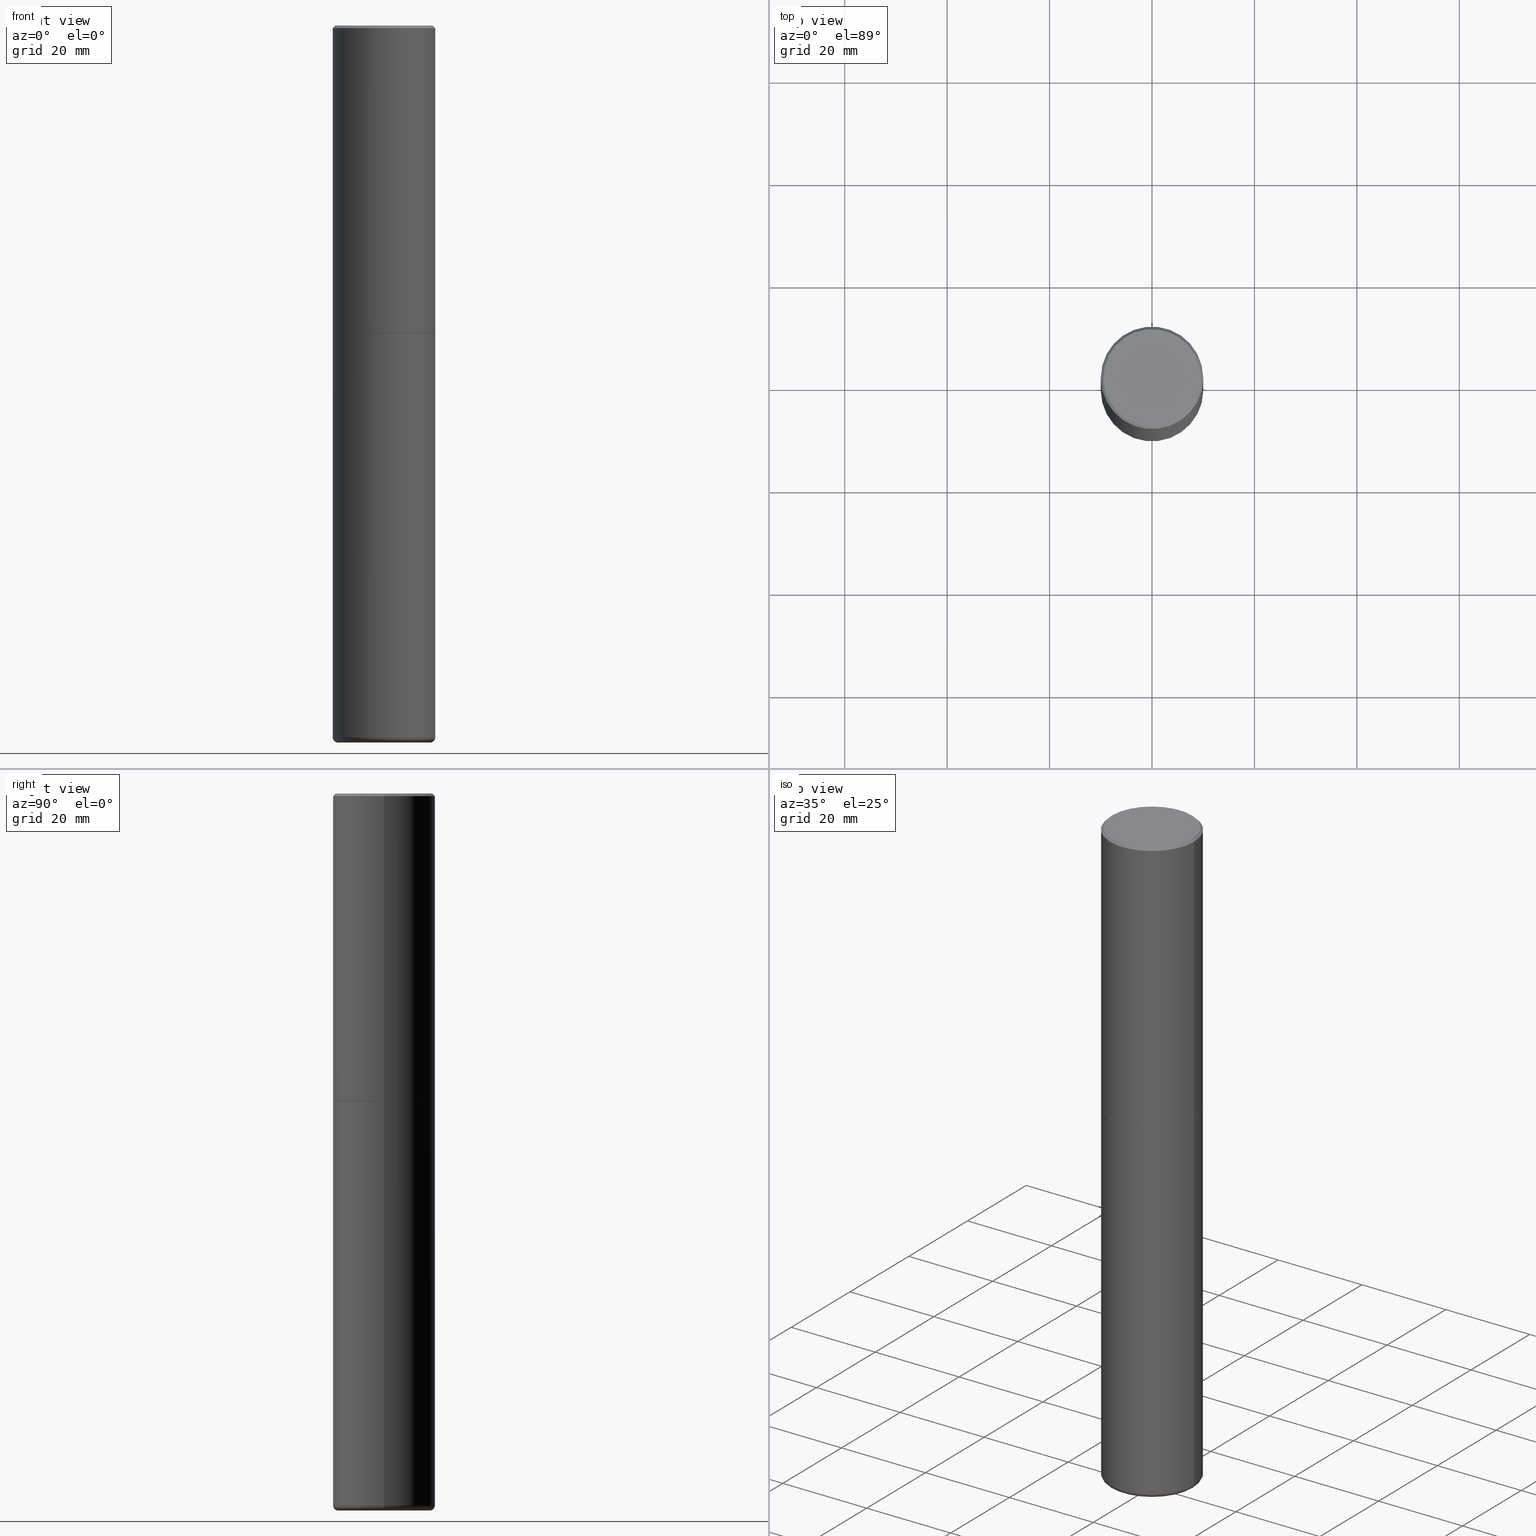
[diagram: canonical four-view strip — front | top / right | iso, engineering-drawing reading convention]
A machine part, canonical four-view strip (front | top / right | iso — engineering-drawing reading convention). The complete STEP part file that produces these views, byte-faithful:
ISO-10303-21;
HEADER;
FILE_DESCRIPTION (( 'STEP AP203' ),
    '1' );
FILE_NAME ('74848.STEP',
    '2024-05-02T19:23:29',
    ( '' ),
    ( '' ),
    'SwSTEP 2.0',
    'SolidWorks 2023',
    '' );
FILE_SCHEMA (( 'CONFIG_CONTROL_DESIGN' ));
ENDSEC;

DATA;
#1 = DIRECTION ( 'NONE',  ( 0.7071067811866199593, -2.468850131083015945E-15, 0.7071067811864750752 ) ) ;
#2 = ORIENTED_EDGE ( 'NONE', *, *, #317, .F. ) ;
#3 = DIRECTION ( 'NONE',  ( -2.445468806185136597E-29, 3.491481338843145583E-15, 1.000000000000000000 ) ) ;
#4 = ORIENTED_EDGE ( 'NONE', *, *, #311, .F. ) ;
#5 = CIRCLE ( 'NONE', #411, 0.3937000000000000499 ) ;
#6 = CC_DESIGN_PERSON_AND_ORGANIZATION_ASSIGNMENT ( #255, #19, ( #321 ) ) ;
#7 = CARTESIAN_POINT ( 'NONE',  ( -0.3736999999999999211, 2.644447966039789453E-15, 2.262311619753034352E-16 ) ) ;
#8 = EDGE_LOOP ( 'NONE', ( #37, #203, #103, #53 ) ) ;
#9 = CARTESIAN_POINT ( 'NONE',  ( 0.000000000000000000, 0.000000000000000000, 0.000000000000000000 ) ) ;
#10 = VERTEX_POINT ( 'NONE', #105 ) ;
#11 =( CONVERSION_BASED_UNIT ( 'INCH', #169 ) LENGTH_UNIT ( ) NAMED_UNIT ( #385 ) );
#12 = EDGE_CURVE ( 'NONE', #328, #382, #40, .T. ) ;
#13 = ORIENTED_EDGE ( 'NONE', *, *, #396, .F. ) ;
#14 = DIRECTION ( 'NONE',  ( -2.445468806185136597E-29, 3.491481338843145583E-15, 1.000000000000000000 ) ) ;
#15 = AXIS2_PLACEMENT_3D ( 'NONE', #24, #121, #56 ) ;
#16 = CIRCLE ( 'NONE', #87, 0.3937000000000001054 ) ;
#17 = PERSON_AND_ORGANIZATION ( #123, #374 ) ;
#18 = DIRECTION ( 'NONE',  ( -2.445468806185136597E-29, 3.491481338843145583E-15, 1.000000000000000000 ) ) ;
#19 = PERSON_AND_ORGANIZATION_ROLE ( 'classification_officer' ) ;
#20 = ADVANCED_FACE ( 'NONE', ( #375 ), #240, .T. ) ;
#21 = AXIS2_PLACEMENT_3D ( 'NONE', #307, #171, #366 ) ;
#22 = EDGE_CURVE ( 'NONE', #157, #69, #281, .T. ) ;
#23 = CIRCLE ( 'NONE', #92, 0.3937000000000000499 ) ;
#24 = CARTESIAN_POINT ( 'NONE',  ( 5.776686413970529753E-29, -8.247577218615279626E-15, -2.362200000000000077 ) ) ;
#25 = VECTOR ( 'NONE', #141, 39.37007874015748143 ) ;
#26 = PRODUCT ( '74848', '74848', '', ( #286 ) ) ;
#27 = AXIS2_PLACEMENT_3D ( 'NONE', #235, #14, #270 ) ;
#28 = EDGE_LOOP ( 'NONE', ( #13, #29, #213, #54 ) ) ;
#29 = ORIENTED_EDGE ( 'NONE', *, *, #311, .T. ) ;
#30 = CARTESIAN_POINT ( 'NONE',  ( 5.776686413970529753E-29, -8.247577218615279626E-15, -2.362200000000000077 ) ) ;
#31 = ORIENTED_EDGE ( 'NONE', *, *, #201, .T. ) ;
#32 = FACE_OUTER_BOUND ( 'NONE', #367, .T. ) ;
#33 = VERTEX_POINT ( 'NONE', #79 ) ;
#34 = CARTESIAN_POINT ( 'NONE',  ( 4.890937612370294178E-31, -6.982962677686321191E-17, -0.02000000000000008715 ) ) ;
#35 = CIRCLE ( 'NONE', #233, 0.3926999999999999935 ) ;
#36 = DIRECTION ( 'NONE',  ( 1.000000000000000000, -6.982962677686266711E-15, 4.877734241229876808E-29 ) ) ;
#37 = ORIENTED_EDGE ( 'NONE', *, *, #139, .T. ) ;
#38 = EDGE_LOOP ( 'NONE', ( #395, #49 ) ) ;
#39 = EDGE_LOOP ( 'NONE', ( #274, #31, #110, #195 ) ) ;
#40 = LINE ( 'NONE', #346, #120 ) ;
#41 = CARTESIAN_POINT ( 'NONE',  ( 5.776686413970529753E-29, -8.247577218615279626E-15, -2.362200000000000077 ) ) ;
#42 = ORIENTED_EDGE ( 'NONE', *, *, #164, .T. ) ;
#43 = CIRCLE ( 'NONE', #21, 0.03940000000000033753 ) ;
#44 = DIRECTION ( 'NONE',  ( 1.000000000000000000, -6.982962677686266711E-15, 4.876176775795935793E-29 ) ) ;
#45 = DATE_AND_TIME ( #218, #215 ) ;
#46 = CALENDAR_DATE ( 2024, 2, 5 ) ;
#47 = CIRCLE ( 'NONE', #104, 0.3736999999999999211 ) ;
#48 = COORDINATED_UNIVERSAL_TIME_OFFSET ( 5, 0, .BEHIND. ) ;
#49 = ORIENTED_EDGE ( 'NONE', *, *, #201, .F. ) ;
#50 = EDGE_CURVE ( 'NONE', #33, #10, #244, .T. ) ;
#51 = DIRECTION ( 'NONE',  ( -1.000000000000000000, 6.982962677686265922E-15, -4.876176775795935793E-29 ) ) ;
#52 = APPROVAL ( #144, 'UNSPECIFIED' ) ;
#53 = ORIENTED_EDGE ( 'NONE', *, *, #22, .F. ) ;
#54 = ORIENTED_EDGE ( 'NONE', *, *, #119, .F. ) ;
#55 = APPROVAL_PERSON_ORGANIZATION ( #146, #124, #181 ) ;
#56 = DIRECTION ( 'NONE',  ( 1.000000000000000000, -6.982962677686265133E-15, 0.000000000000000000 ) ) ;
#57 = EDGE_CURVE ( 'NONE', #170, #295, #275, .T. ) ;
#58 = MANIFOLD_SOLID_BREP ( 'Body-Move/Copy2[1]', #299 ) ;
#59 = ORIENTED_EDGE ( 'NONE', *, *, #220, .T. ) ;
#60 = LINE ( 'NONE', #303, #349 ) ;
#61 = VERTEX_POINT ( 'NONE', #399 ) ;
#62 = ORIENTED_EDGE ( 'NONE', *, *, #12, .T. ) ;
#63 = CARTESIAN_POINT ( 'NONE',  ( -0.3926999999999999935, -5.457275895285365059E-15, -2.362200000000000077 ) ) ;
#64 = ORIENTED_EDGE ( 'NONE', *, *, #119, .T. ) ;
#65 = CARTESIAN_POINT ( 'NONE',  ( 2.609533152651356620E-15, 0.3736999999999999211, -1.191650995338022328E-15 ) ) ;
#66 = AXIS2_PLACEMENT_3D ( 'NONE', #162, #99, #288 ) ;
#67 = EDGE_LOOP ( 'NONE', ( #172, #42, #304, #143 ) ) ;
#68 = DIRECTION ( 'NONE',  ( 2.445468806185136597E-29, -3.491481338843145583E-15, -1.000000000000000000 ) ) ;
#69 = VERTEX_POINT ( 'NONE', #242 ) ;
#70 = DIRECTION ( 'NONE',  ( 2.445468806185136597E-29, -3.491481338843145583E-15, -1.000000000000000000 ) ) ;
#71 = PLANE ( 'NONE',  #416 ) ;
#72 = ORIENTED_EDGE ( 'NONE', *, *, #109, .F. ) ;
#73 = APPROVAL_ROLE ( '' ) ;
#74 = CARTESIAN_POINT ( 'NONE',  ( 1.608174522551343460E-29, -3.624395144008107649E-14, -5.511800000000000033 ) ) ;
#75 = COORDINATED_UNIVERSAL_TIME_OFFSET ( 5, 0, .BEHIND. ) ;
#76 = ADVANCED_FACE ( 'NONE', ( #302 ), #133, .T. ) ;
#77 = CC_DESIGN_APPROVAL ( #261, ( #216 ) ) ;
#78 = CC_DESIGN_DATE_AND_TIME_ASSIGNMENT ( #184, #177, ( #168 ) ) ;
#79 = CARTESIAN_POINT ( 'NONE',  ( 0.3736999999999999211, -2.667287895133367964E-15, 2.262311619753402158E-16 ) ) ;
#80 = DATE_AND_TIME ( #113, #355 ) ;
#81 = DIRECTION ( 'NONE',  ( -2.445468806185136597E-29, 3.491481338843145583E-15, 1.000000000000000000 ) ) ;
#82 = DIRECTION ( 'NONE',  ( 1.000000000000000000, 0.000000000000000000, 0.000000000000000000 ) ) ;
#83 = CYLINDRICAL_SURFACE ( 'NONE', #405, 0.3937000000000002164 ) ;
#84 = ADVANCED_FACE ( 'NONE', ( #193 ), #380, .T. ) ;
#85 = PERSON_AND_ORGANIZATION ( #123, #374 ) ;
#86 = AXIS2_PLACEMENT_3D ( 'NONE', #277, #407, #278 ) ;
#87 = AXIS2_PLACEMENT_3D ( 'NONE', #34, #340, #130 ) ;
#88 = CARTESIAN_POINT ( 'NONE',  ( 1.338258349496754075E-28, -1.910678247868523272E-14, -5.472400000000000375 ) ) ;
#89 = CARTESIAN_POINT ( 'NONE',  ( -5.532412495976664402E-45, 7.898818803016371119E-31, 2.262311619753217762E-16 ) ) ;
#90 = DIRECTION ( 'NONE',  ( -2.445468806185136597E-29, 3.491481338843145583E-15, 1.000000000000000000 ) ) ;
#91 = EDGE_CURVE ( 'NONE', #404, #98, #126, .T. ) ;
#92 = AXIS2_PLACEMENT_3D ( 'NONE', #88, #90, #293 ) ;
#93 = ORIENTED_EDGE ( 'NONE', *, *, #250, .T. ) ;
#94 = VECTOR ( 'NONE', #265, 39.37007874015748143 ) ;
#95 = AXIS2_PLACEMENT_3D ( 'NONE', #314, #18, #145 ) ;
#96 =( LENGTH_UNIT ( ) NAMED_UNIT ( * ) SI_UNIT ( $, .METRE. ) );
#97 = FACE_OUTER_BOUND ( 'NONE', #415, .T. ) ;
#98 = VERTEX_POINT ( 'NONE', #357 ) ;
#99 = DIRECTION ( 'NONE',  ( -2.445468806185136597E-29, 3.491481338843145583E-15, 1.000000000000000000 ) ) ;
#100 = DIRECTION ( 'NONE',  ( 1.000000000000000000, -6.982962677686265922E-15, 4.876176775795935793E-29 ) ) ;
#101 = DIRECTION ( 'NONE',  ( -2.445468806185136597E-29, 3.491481338843145583E-15, 1.000000000000000000 ) ) ;
#102 = ORIENTED_EDGE ( 'NONE', *, *, #317, .T. ) ;
#103 = ORIENTED_EDGE ( 'NONE', *, *, #279, .F. ) ;
#104 = AXIS2_PLACEMENT_3D ( 'NONE', #89, #352, #259 ) ;
#105 = CARTESIAN_POINT ( 'NONE',  ( 0.3937000000000001054, -2.770807688499516128E-15, -0.02000000000000008715 ) ) ;
#106 = DIRECTION ( 'NONE',  ( -2.445468806185136877E-29, 3.491481338843145188E-15, 1.000000000000000000 ) ) ;
#107 = ORIENTED_EDGE ( 'NONE', *, *, #91, .F. ) ;
#108 = EDGE_LOOP ( 'NONE', ( #237, #208, #62, #102 ) ) ;
#109 = EDGE_CURVE ( 'NONE', #98, #10, #325, .T. ) ;
#110 = ORIENTED_EDGE ( 'NONE', *, *, #22, .T. ) ;
#111 = COORDINATED_UNIVERSAL_TIME_OFFSET ( 5, 0, .BEHIND. ) ;
#112 = CLOSED_SHELL ( 'NONE', ( #364, #326, #20, #356, #287, #84, #336, #132 ) ) ;
#113 = CALENDAR_DATE ( 2024, 2, 5 ) ;
#114 = VECTOR ( 'NONE', #262, 39.37007874015748143 ) ;
#115 = APPROVAL_DATE_TIME ( #412, #124 ) ;
#116 = PERSON_AND_ORGANIZATION_ROLE ( 'creator' ) ;
#117 = CIRCLE ( 'NONE', #66, 0.3937000000000002720 ) ;
#118 = DIRECTION ( 'NONE',  ( 1.000000000000000000, -6.982962677686267499E-15, 0.000000000000000000 ) ) ;
#119 = EDGE_CURVE ( 'NONE', #61, #98, #354, .T. ) ;
#120 = VECTOR ( 'NONE', #271, 39.37007874015748143 ) ;
#121 = DIRECTION ( 'NONE',  ( -2.445468806185136597E-29, 3.491481338843145583E-15, 1.000000000000000000 ) ) ;
#122 = ADVANCED_FACE ( 'NONE', ( #329 ), #159, .T. ) ;
#123 = PERSON ( 'UNSPECIFIED', 'UNSPECIFIED', 'UNSPECIFIED', ('UNSPECIFIED'), ('UNSPECIFIED'), ('UNSPECIFIED') ) ;
#124 = APPROVAL ( #214, 'UNSPECIFIED' ) ;
#125 = ORIENTED_EDGE ( 'NONE', *, *, #234, .T. ) ;
#126 = LINE ( 'NONE', #155, #289 ) ;
#127 = CARTESIAN_POINT ( 'NONE',  ( -0.3937000000000001054, 2.679362779428220707E-15, -0.02000000000000008715 ) ) ;
#128 = AXIS2_PLACEMENT_3D ( 'NONE', #192, #323, #386 ) ;
#129 = FACE_OUTER_BOUND ( 'NONE', #296, .T. ) ;
#130 = DIRECTION ( 'NONE',  ( 1.000000000000000000, -6.982962677686266711E-15, 0.000000000000000000 ) ) ;
#131 = ORIENTED_EDGE ( 'NONE', *, *, #250, .F. ) ;
#132 = ADVANCED_FACE ( 'NONE', ( #32 ), #365, .F. ) ;
#133 = PLANE ( 'NONE',  #320 ) ;
#134 = FACE_OUTER_BOUND ( 'NONE', #154, .T. ) ;
#135 = CARTESIAN_POINT ( 'NONE',  ( 0.000000000000000000, 0.000000000000000000, 0.000000000000000000 ) ) ;
#136 = AXIS2_PLACEMENT_3D ( 'NONE', #393, #138, #36 ) ;
#137 = DIRECTION ( 'NONE',  ( -1.000000000000000000, 6.982962677686266711E-15, 0.000000000000000000 ) ) ;
#138 = DIRECTION ( 'NONE',  ( -2.445468806185136597E-29, 3.491481338843145583E-15, 1.000000000000000000 ) ) ;
#139 = EDGE_CURVE ( 'NONE', #157, #263, #163, .T. ) ;
#140 = CC_DESIGN_PERSON_AND_ORGANIZATION_ASSIGNMENT ( #408, #249, ( #26 ) ) ;
#141 = DIRECTION ( 'NONE',  ( 0.7071067811865454633, -7.319954787623248157E-15, -0.7071067811865495711 ) ) ;
#142 = CARTESIAN_POINT ( 'NONE',  ( 0.000000000000000000, 0.000000000000000000, 0.000000000000000000 ) ) ;
#143 = ORIENTED_EDGE ( 'NONE', *, *, #57, .F. ) ;
#144 = APPROVAL_STATUS ( 'not_yet_approved' ) ;
#145 = DIRECTION ( 'NONE',  ( 1.000000000000000000, -6.982962677686272233E-15, 4.883557194083114022E-29 ) ) ;
#146 = PERSON_AND_ORGANIZATION ( #123, #374 ) ;
#147 = AXIS2_PLACEMENT_3D ( 'NONE', #378, #351, #225 ) ;
#148 = APPLICATION_PROTOCOL_DEFINITION ( 'international standard', 'config_control_design', 1994, #258 ) ;
#149 = AXIS2_PLACEMENT_3D ( 'NONE', #65, #189, #413 ) ;
#150 = VECTOR ( 'NONE', #362, 39.37007874015748143 ) ;
#151 = DIRECTION ( 'NONE',  ( -2.445468806185136597E-29, 3.491481338843145583E-15, 1.000000000000000000 ) ) ;
#152 = ADVANCED_FACE ( 'NONE', ( #260 ), #256, .T. ) ;
#153 = CC_DESIGN_PERSON_AND_ORGANIZATION_ASSIGNMENT ( #85, #116, ( #168 ) ) ;
#154 = EDGE_LOOP ( 'NONE', ( #125, #334, #248, #72 ) ) ;
#155 = CARTESIAN_POINT ( 'NONE',  ( 0.3926999999999999935, -1.098978666214267525E-14, -2.362200000000000077 ) ) ;
#156 = CONICAL_SURFACE ( 'NONE', #27, 0.3926999999999999935, 0.7853981633975507526 ) ;
#157 = VERTEX_POINT ( 'NONE', #379 ) ;
#158 = FACE_OUTER_BOUND ( 'NONE', #39, .T. ) ;
#159 = CYLINDRICAL_SURFACE ( 'NONE', #392, 0.3937000000000000499 ) ;
#160 = DIRECTION ( 'NONE',  ( -2.445468806185136597E-29, 3.491481338843145583E-15, 1.000000000000000000 ) ) ;
#161 = CARTESIAN_POINT ( 'NONE',  ( 4.890937612370294178E-31, -6.982962677686321191E-17, -0.02000000000000008715 ) ) ;
#162 = CARTESIAN_POINT ( 'NONE',  ( 5.774240945164344150E-29, -8.244085737276435042E-15, -2.361199999999999743 ) ) ;
#163 = CIRCLE ( 'NONE', #147, 0.3543000000000000038 ) ;
#164 = EDGE_CURVE ( 'NONE', #409, #69, #23, .T. ) ;
#165 = AXIS2_PLACEMENT_3D ( 'NONE', #284, #254, #345 ) ;
#166 = DESIGN_CONTEXT ( 'detailed design', #194, 'design' ) ;
#167 = CARTESIAN_POINT ( 'NONE',  ( 0.3937000000000001054, -2.770807688499516128E-15, -0.02000000000000008715 ) ) ;
#168 = PRODUCT_DEFINITION ( 'UNKNOWN', '', #216, #166 ) ;
#169 = LENGTH_MEASURE_WITH_UNIT ( LENGTH_MEASURE( 0.02539999999999999897 ), #96 );
#170 = VERTEX_POINT ( 'NONE', #387 ) ;
#171 = DIRECTION ( 'NONE',  ( 7.105427357601001859E-15, 1.000000000000000000, -3.491481338843145583E-15 ) ) ;
#172 = ORIENTED_EDGE ( 'NONE', *, *, #174, .F. ) ;
#173 = DIRECTION ( 'NONE',  ( -2.438088387897960049E-29, 3.491481338843145188E-15, 1.000000000000000000 ) ) ;
#174 = EDGE_CURVE ( 'NONE', #409, #170, #221, .T. ) ;
#175 = AXIS2_PLACEMENT_3D ( 'NONE', #9, #101, #272 ) ;
#176 = DIRECTION ( 'NONE',  ( -6.982962677686266711E-15, -1.000000000000000000, 3.491481338843145583E-15 ) ) ;
#177 = DATE_TIME_ROLE ( 'creation_date' ) ;
#178 = ORIENTED_EDGE ( 'NONE', *, *, #324, .F. ) ;
#179 = PERSON_AND_ORGANIZATION_ROLE ( 'creator' ) ;
#180 = APPLICATION_PROTOCOL_DEFINITION ( 'international standard', 'config_control_design', 1994, #194 ) ;
#181 = APPROVAL_ROLE ( '' ) ;
#182 = CC_DESIGN_PERSON_AND_ORGANIZATION_ASSIGNMENT ( #414, #243, ( #216 ) ) ;
#183 = DIRECTION ( 'NONE',  ( -1.000000000000000000, 6.982962677686265922E-15, -4.876176775795935793E-29 ) ) ;
#184 = DATE_AND_TIME ( #46, #394 ) ;
#185 = ORIENTED_EDGE ( 'NONE', *, *, #406, .T. ) ;
#186 = ADVANCED_BREP_SHAPE_REPRESENTATION ( '74848', ( #58, #212, #197 ), #316 ) ;
#187 = CARTESIAN_POINT ( 'NONE',  ( 5.776686413970529753E-29, -8.247577218615279626E-15, -2.362200000000000077 ) ) ;
#188 = ADVANCED_FACE ( 'NONE', ( #158 ), #268, .T. ) ;
#189 = DIRECTION ( 'NONE',  ( 2.438088387897960049E-29, -3.491481338843145188E-15, -1.000000000000000000 ) ) ;
#190 = AXIS2_PLACEMENT_3D ( 'NONE', #391, #160, #401 ) ;
#191 = AXIS2_PLACEMENT_3D ( 'NONE', #253, #344, #280 ) ;
#192 = CARTESIAN_POINT ( 'NONE',  ( 1.338258349496754075E-28, -1.910678247868523272E-14, -5.472400000000000375 ) ) ;
#193 = FACE_OUTER_BOUND ( 'NONE', #28, .T. ) ;
#194 = APPLICATION_CONTEXT ( 'configuration controlled 3d designs of mechanical parts and assemblies' ) ;
#195 = ORIENTED_EDGE ( 'NONE', *, *, #164, .F. ) ;
#196 = PRODUCT_DEFINITION_SHAPE ( 'NONE', 'NONE',  #168 ) ;
#197 = AXIS2_PLACEMENT_3D ( 'NONE', #142, #376, #82 ) ;
#198 = CARTESIAN_POINT ( 'NONE',  ( -0.3937000000000002164, -1.630937572799771557E-14, -5.472400000000000375 ) ) ;
#199 = CARTESIAN_POINT ( 'NONE',  ( 0.3937000000000002164, -2.749192406205084794E-15, 1.919750796630861012E-29 ) ) ;
#200 = DIRECTION ( 'NONE',  ( -2.445468806185136597E-29, 3.491481338843145583E-15, 1.000000000000000000 ) ) ;
#201 = EDGE_CURVE ( 'NONE', #263, #157, #335, .T. ) ;
#202 = DIRECTION ( 'NONE',  ( -0.7071067811866199593, 7.493145998870616062E-15, 0.7071067811864750752 ) ) ;
#203 = ORIENTED_EDGE ( 'NONE', *, *, #353, .T. ) ;
#204 = AXIS2_PLACEMENT_3D ( 'NONE', #339, #397, #400 ) ;
#205 = ORIENTED_EDGE ( 'NONE', *, *, #239, .T. ) ;
#206 = LINE ( 'NONE', #236, #150 ) ;
#207 = DIRECTION ( 'NONE',  ( -2.445468806185136597E-29, 3.491481338843145583E-15, 1.000000000000000000 ) ) ;
#208 = ORIENTED_EDGE ( 'NONE', *, *, #264, .F. ) ;
#209 = ADVANCED_FACE ( 'NONE', ( #282 ), #251, .F. ) ;
#210 = CARTESIAN_POINT ( 'NONE',  ( 0.3543000000000000038, -2.158084615538947751E-14, -5.472400000000000375 ) ) ;
#211 = CARTESIAN_POINT ( 'NONE',  ( -0.3926999999999999935, -5.451977440937141868E-15, -2.362200000000000077 ) ) ;
#212 = MANIFOLD_SOLID_BREP ( 'Body-Move/Copy2[2]', #112 ) ;
#213 = ORIENTED_EDGE ( 'NONE', *, *, #91, .T. ) ;
#214 = APPROVAL_STATUS ( 'not_yet_approved' ) ;
#215 = LOCAL_TIME ( 15, 23, 29.00000000000000000, #75 ) ;
#216 = PRODUCT_DEFINITION_FORMATION_WITH_SPECIFIED_SOURCE ( 'ANY', '', #26, .NOT_KNOWN. ) ;
#217 = DIRECTION ( 'NONE',  ( 2.438088387897960049E-29, -3.491481338843145188E-15, -1.000000000000000000 ) ) ;
#218 = CALENDAR_DATE ( 2024, 2, 5 ) ;
#219 = APPROVAL_PERSON_ORGANIZATION ( #350, #52, #73 ) ;
#220 = EDGE_CURVE ( 'NONE', #10, #382, #16, .T. ) ;
#221 = LINE ( 'NONE', #229, #114 ) ;
#222 = DIRECTION ( 'NONE',  ( 2.438088387897960049E-29, -3.491481338843145188E-15, -1.000000000000000000 ) ) ;
#223 = CARTESIAN_POINT ( 'NONE',  ( 0.000000000000000000, 0.000000000000000000, 0.000000000000000000 ) ) ;
#224 = APPROVAL_DATE_TIME ( #80, #52 ) ;
#225 = DIRECTION ( 'NONE',  ( 1.000000000000000000, -6.982962677686272233E-15, 0.000000000000000000 ) ) ;
#226 = AXIS2_PLACEMENT_3D ( 'NONE', #370, #70, #137 ) ;
#227 = DATE_AND_TIME ( #252, #322 ) ;
#228 = CONICAL_SURFACE ( 'NONE', #342, 0.3937000000000001054, 0.7853981633974453924 ) ;
#229 = CARTESIAN_POINT ( 'NONE',  ( -0.3937000000000000499, 2.797406750687514786E-15, -1.936584745033356735E-29 ) ) ;
#230 = ORIENTED_EDGE ( 'NONE', *, *, #109, .T. ) ;
#231 = CIRCLE ( 'NONE', #128, 0.3937000000000000499 ) ;
#232 = ORIENTED_EDGE ( 'NONE', *, *, #396, .T. ) ;
#233 = AXIS2_PLACEMENT_3D ( 'NONE', #30, #200, #238 ) ;
#234 = EDGE_CURVE ( 'NONE', #98, #61, #117, .T. ) ;
#235 = CARTESIAN_POINT ( 'NONE',  ( 5.776686413970529753E-29, -8.247577218615279626E-15, -2.362200000000000077 ) ) ;
#236 = CARTESIAN_POINT ( 'NONE',  ( 0.3937000000000000499, -2.749192406205083217E-15, 1.919750796630860172E-29 ) ) ;
#237 = ORIENTED_EDGE ( 'NONE', *, *, #50, .F. ) ;
#238 = DIRECTION ( 'NONE',  ( 1.000000000000000000, -6.982962677686265133E-15, 0.000000000000000000 ) ) ;
#239 = EDGE_CURVE ( 'NONE', #404, #369, #283, .T. ) ;
#240 = CONICAL_SURFACE ( 'NONE', #226, 0.3937000000000001054, 0.7853981633974453924 ) ;
#241 = LOCAL_TIME ( 15, 23, 29.00000000000000000, #48 ) ;
#242 = CARTESIAN_POINT ( 'NONE',  ( 0.3937000000000002164, -2.185597488489031909E-14, -5.472400000000000375 ) ) ;
#243 = PERSON_AND_ORGANIZATION_ROLE ( 'design_supplier' ) ;
#244 = LINE ( 'NONE', #167, #25 ) ;
#245 = APPROVAL_STATUS ( 'not_yet_approved' ) ;
#246 = AXIS2_PLACEMENT_3D ( 'NONE', #292, #207, #361 ) ;
#247 = CC_DESIGN_SECURITY_CLASSIFICATION ( #321, ( #216 ) ) ;
#248 = ORIENTED_EDGE ( 'NONE', *, *, #220, .F. ) ;
#249 = PERSON_AND_ORGANIZATION_ROLE ( 'design_owner' ) ;
#250 = EDGE_CURVE ( 'NONE', #295, #170, #5, .T. ) ;
#251 = PLANE ( 'NONE',  #276 ) ;
#252 = CALENDAR_DATE ( 2024, 2, 5 ) ;
#253 = CARTESIAN_POINT ( 'NONE',  ( 1.347893496593123871E-28, -1.924434684343565194E-14, -5.511800000000000921 ) ) ;
#254 = DIRECTION ( 'NONE',  ( -2.445468806185136597E-29, 3.491481338843145583E-15, 1.000000000000000000 ) ) ;
#255 = PERSON_AND_ORGANIZATION ( #123, #374 ) ;
#256 = CYLINDRICAL_SURFACE ( 'NONE', #290, 0.3937000000000000499 ) ;
#257 = PRODUCT_RELATED_PRODUCT_CATEGORY ( 'detail', '', ( #26 ) ) ;
#258 = APPLICATION_CONTEXT ( 'configuration controlled 3d designs of mechanical parts and assemblies' ) ;
#259 = DIRECTION ( 'NONE',  ( 1.000000000000000000, -6.982962677686266711E-15, 4.877734241229876808E-29 ) ) ;
#260 = FACE_OUTER_BOUND ( 'NONE', #358, .T. ) ;
#261 = APPROVAL ( #245, 'UNSPECIFIED' ) ;
#262 = DIRECTION ( 'NONE',  ( -2.445468806185136877E-29, 3.491481338843145188E-15, 1.000000000000000000 ) ) ;
#263 = VERTEX_POINT ( 'NONE', #383 ) ;
#264 = EDGE_CURVE ( 'NONE', #328, #33, #47, .T. ) ;
#265 = DIRECTION ( 'NONE',  ( -2.445468806185136877E-29, 3.491481338843145188E-15, 1.000000000000000000 ) ) ;
#266 = LINE ( 'NONE', #63, #327 ) ;
#267 = ORIENTED_EDGE ( 'NONE', *, *, #384, .F. ) ;
#268 = TOROIDAL_SURFACE ( 'NONE', #95, 0.3543000000000000038, 0.03940000000000033753 ) ;
#269 = CC_DESIGN_APPROVAL ( #52, ( #321 ) ) ;
#270 = DIRECTION ( 'NONE',  ( 1.000000000000000000, -6.982962677686265133E-15, 0.000000000000000000 ) ) ;
#271 = DIRECTION ( 'NONE',  ( -0.7071067811865454633, 2.468850131082235367E-15, -0.7071067811865495711 ) ) ;
#272 = DIRECTION ( 'NONE',  ( 1.000000000000000000, -6.982962677686266711E-15, 4.876176775795935793E-29 ) ) ;
#273 = ORIENTED_EDGE ( 'NONE', *, *, #406, .F. ) ;
#274 = ORIENTED_EDGE ( 'NONE', *, *, #353, .F. ) ;
#275 = CIRCLE ( 'NONE', #86, 0.3937000000000000499 ) ;
#276 = AXIS2_PLACEMENT_3D ( 'NONE', #381, #222, #183 ) ;
#277 = CARTESIAN_POINT ( 'NONE',  ( 5.776686413970529753E-29, -8.247577218615279626E-15, -2.362200000000000077 ) ) ;
#278 = DIRECTION ( 'NONE',  ( 1.000000000000000000, -6.982962677686267499E-15, 0.000000000000000000 ) ) ;
#279 = EDGE_CURVE ( 'NONE', #69, #409, #231, .T. ) ;
#280 = DIRECTION ( 'NONE',  ( 1.000000000000000000, -6.982962677686272233E-15, 0.000000000000000000 ) ) ;
#281 = CIRCLE ( 'NONE', #348, 0.03940000000000033753 ) ;
#282 = FACE_OUTER_BOUND ( 'NONE', #398, .T. ) ;
#283 = CIRCLE ( 'NONE', #165, 0.3926999999999999935 ) ;
#284 = CARTESIAN_POINT ( 'NONE',  ( 5.776686413970529753E-29, -8.247577218615279626E-15, -2.362200000000000077 ) ) ;
#285 = FACE_OUTER_BOUND ( 'NONE', #363, .T. ) ;
#286 = MECHANICAL_CONTEXT ( 'NONE', #258, 'mechanical' ) ;
#287 = ADVANCED_FACE ( 'NONE', ( #285 ), #83, .T. ) ;
#288 = DIRECTION ( 'NONE',  ( 1.000000000000000000, -6.982962677686265922E-15, 0.000000000000000000 ) ) ;
#289 = VECTOR ( 'NONE', #1, 39.37007874015748143 ) ;
#290 = AXIS2_PLACEMENT_3D ( 'NONE', #319, #151, #291 ) ;
#291 = DIRECTION ( 'NONE',  ( 1.000000000000000000, -6.982962677686265922E-15, 4.876176775795935793E-29 ) ) ;
#292 = CARTESIAN_POINT ( 'NONE',  ( 1.338258349496754075E-28, -1.910678247868523272E-14, -5.472400000000000375 ) ) ;
#293 = DIRECTION ( 'NONE',  ( 1.000000000000000000, -6.982962677686267499E-15, 0.000000000000000000 ) ) ;
#294 = ADVANCED_FACE ( 'NONE', ( #372 ), #388, .T. ) ;
#295 = VERTEX_POINT ( 'NONE', #333 ) ;
#296 = EDGE_LOOP ( 'NONE', ( #205, #232, #312, #107 ) ) ;
#297 = ORIENTED_EDGE ( 'NONE', *, *, #279, .T. ) ;
#298 = DIRECTION ( 'NONE',  ( -1.000000000000000000, 6.982962677686266711E-15, 0.000000000000000000 ) ) ;
#299 = CLOSED_SHELL ( 'NONE', ( #152, #294, #209, #122, #188, #76 ) ) ;
#300 = ORIENTED_EDGE ( 'NONE', *, *, #239, .F. ) ;
#301 = CIRCLE ( 'NONE', #136, 0.3736999999999999211 ) ;
#302 = FACE_OUTER_BOUND ( 'NONE', #38, .T. ) ;
#303 = CARTESIAN_POINT ( 'NONE',  ( -0.3937000000000002164, 2.797406750687515970E-15, -1.936584745033357576E-29 ) ) ;
#304 = ORIENTED_EDGE ( 'NONE', *, *, #384, .T. ) ;
#305 = CYLINDRICAL_SURFACE ( 'NONE', #175, 0.3937000000000002164 ) ;
#306 = ORIENTED_EDGE ( 'NONE', *, *, #174, .T. ) ;
#307 = CARTESIAN_POINT ( 'NONE',  ( -0.3543000000000000038, -1.658932956588719576E-14, -5.472400000000000375 ) ) ;
#308 = CC_DESIGN_APPROVAL ( #124, ( #168 ) ) ;
#309 = UNCERTAINTY_MEASURE_WITH_UNIT (LENGTH_MEASURE( 1.000000000000000082E-05 ), #11, 'distance_accuracy_value', 'NONE');
#310 = DIRECTION ( 'NONE',  ( 1.000000000000000000, -6.982962677686268288E-15, 0.000000000000000000 ) ) ;
#311 = EDGE_CURVE ( 'NONE', #369, #404, #35, .T. ) ;
#312 = ORIENTED_EDGE ( 'NONE', *, *, #234, .F. ) ;
#313 = SECURITY_CLASSIFICATION_LEVEL ( 'unclassified' ) ;
#314 = CARTESIAN_POINT ( 'NONE',  ( 1.338258349496754075E-28, -1.910678247868523272E-14, -5.472400000000000375 ) ) ;
#315 = COORDINATED_UNIVERSAL_TIME_OFFSET ( 5, 0, .BEHIND. ) ;
#316 =( GEOMETRIC_REPRESENTATION_CONTEXT ( 3 ) GLOBAL_UNCERTAINTY_ASSIGNED_CONTEXT ( ( #309 ) ) GLOBAL_UNIT_ASSIGNED_CONTEXT ( ( #11, #371, #359 ) ) REPRESENTATION_CONTEXT ( 'NONE', 'WORKASPACE' ) );
#317 = EDGE_CURVE ( 'NONE', #382, #10, #368, .T. ) ;
#318 = PERSON_AND_ORGANIZATION ( #123, #374 ) ;
#319 = CARTESIAN_POINT ( 'NONE',  ( 0.000000000000000000, 0.000000000000000000, 0.000000000000000000 ) ) ;
#320 = AXIS2_PLACEMENT_3D ( 'NONE', #74, #217, #51 ) ;
#321 = SECURITY_CLASSIFICATION ( '', '', #313 ) ;
#322 = LOCAL_TIME ( 15, 23, 29.00000000000000000, #315 ) ;
#323 = DIRECTION ( 'NONE',  ( -2.445468806185136597E-29, 3.491481338843145583E-15, 1.000000000000000000 ) ) ;
#324 = EDGE_CURVE ( 'NONE', #61, #382, #60, .T. ) ;
#325 = LINE ( 'NONE', #199, #94 ) ;
#326 = ADVANCED_FACE ( 'NONE', ( #134 ), #305, .T. ) ;
#327 = VECTOR ( 'NONE', #202, 39.37007874015748143 ) ;
#328 = VERTEX_POINT ( 'NONE', #7 ) ;
#329 = FACE_OUTER_BOUND ( 'NONE', #67, .T. ) ;
#330 = FACE_OUTER_BOUND ( 'NONE', #108, .T. ) ;
#331 = DIRECTION ( 'NONE',  ( -2.445468806185136597E-29, 3.491481338843145583E-15, 1.000000000000000000 ) ) ;
#332 = ORIENTED_EDGE ( 'NONE', *, *, #57, .T. ) ;
#333 = CARTESIAN_POINT ( 'NONE',  ( 0.3937000000000000499, -1.099676962482036284E-14, -2.362200000000000077 ) ) ;
#334 = ORIENTED_EDGE ( 'NONE', *, *, #324, .T. ) ;
#335 = CIRCLE ( 'NONE', #191, 0.3543000000000000038 ) ;
#336 = ADVANCED_FACE ( 'NONE', ( #97 ), #71, .F. ) ;
#337 = CARTESIAN_POINT ( 'NONE',  ( 0.3926999999999999935, -1.098978666214267525E-14, -2.362200000000000077 ) ) ;
#338 = EDGE_LOOP ( 'NONE', ( #273, #402, #59, #418 ) ) ;
#339 = CARTESIAN_POINT ( 'NONE',  ( 4.890937612370294178E-31, -6.982962677686321191E-17, -0.02000000000000008715 ) ) ;
#340 = DIRECTION ( 'NONE',  ( -2.445468806185136597E-29, 3.491481338843145583E-15, 1.000000000000000000 ) ) ;
#341 = SHAPE_DEFINITION_REPRESENTATION ( #196, #186 ) ;
#342 = AXIS2_PLACEMENT_3D ( 'NONE', #161, #68, #298 ) ;
#343 = CALENDAR_DATE ( 2024, 2, 5 ) ;
#344 = DIRECTION ( 'NONE',  ( -2.445468806185136597E-29, 3.491481338843145583E-15, 1.000000000000000000 ) ) ;
#345 = DIRECTION ( 'NONE',  ( 1.000000000000000000, -6.982962677686265133E-15, 0.000000000000000000 ) ) ;
#346 = CARTESIAN_POINT ( 'NONE',  ( -0.3937000000000001054, 2.679362779428220707E-15, -0.02000000000000008715 ) ) ;
#347 = COORDINATED_UNIVERSAL_TIME_OFFSET ( 5, 0, .BEHIND. ) ;
#348 = AXIS2_PLACEMENT_3D ( 'NONE', #210, #176, #310 ) ;
#349 = VECTOR ( 'NONE', #106, 39.37007874015748143 ) ;
#350 = PERSON_AND_ORGANIZATION ( #123, #374 ) ;
#351 = DIRECTION ( 'NONE',  ( -2.445468806185136597E-29, 3.491481338843145583E-15, 1.000000000000000000 ) ) ;
#352 = DIRECTION ( 'NONE',  ( -2.445468806185136597E-29, 3.491481338843145583E-15, 1.000000000000000000 ) ) ;
#353 = EDGE_CURVE ( 'NONE', #263, #409, #43, .T. ) ;
#354 = CIRCLE ( 'NONE', #190, 0.3937000000000002720 ) ;
#355 = LOCAL_TIME ( 15, 23, 29.00000000000000000, #347 ) ;
#356 = ADVANCED_FACE ( 'NONE', ( #330 ), #228, .T. ) ;
#357 = CARTESIAN_POINT ( 'NONE',  ( 0.3937000000000002720, -1.099327814348151984E-14, -2.361199999999999743 ) ) ;
#358 = EDGE_LOOP ( 'NONE', ( #297, #306, #131, #267 ) ) ;
#359 =( NAMED_UNIT ( * ) SI_UNIT ( $, .STERADIAN. ) SOLID_ANGLE_UNIT ( ) );
#360 = APPROVAL_PERSON_ORGANIZATION ( #17, #261, #373 ) ;
#361 = DIRECTION ( 'NONE',  ( 1.000000000000000000, -6.982962677686272233E-15, 4.883557194083114022E-29 ) ) ;
#362 = DIRECTION ( 'NONE',  ( -2.445468806185136877E-29, 3.491481338843145188E-15, 1.000000000000000000 ) ) ;
#363 = EDGE_LOOP ( 'NONE', ( #178, #64, #230, #2 ) ) ;
#364 = ADVANCED_FACE ( 'NONE', ( #129 ), #156, .T. ) ;
#365 = PLANE ( 'NONE',  #149 ) ;
#366 = DIRECTION ( 'NONE',  ( -1.000000000000000000, 7.105427357601014480E-15, 0.000000000000000000 ) ) ;
#367 = EDGE_LOOP ( 'NONE', ( #390, #185 ) ) ;
#368 = CIRCLE ( 'NONE', #204, 0.3937000000000001054 ) ;
#369 = VERTEX_POINT ( 'NONE', #211 ) ;
#370 = CARTESIAN_POINT ( 'NONE',  ( 4.890937612370294178E-31, -6.982962677686321191E-17, -0.02000000000000008715 ) ) ;
#371 =( NAMED_UNIT ( * ) PLANE_ANGLE_UNIT ( ) SI_UNIT ( $, .RADIAN. ) );
#372 = FACE_OUTER_BOUND ( 'NONE', #8, .T. ) ;
#373 = APPROVAL_ROLE ( '' ) ;
#374 = ORGANIZATION ( 'UNSPECIFIED', 'UNSPECIFIED', '' ) ;
#375 = FACE_OUTER_BOUND ( 'NONE', #338, .T. ) ;
#376 = DIRECTION ( 'NONE',  ( 0.000000000000000000, 0.000000000000000000, 1.000000000000000000 ) ) ;
#377 = DATE_TIME_ROLE ( 'classification_date' ) ;
#378 = CARTESIAN_POINT ( 'NONE',  ( 1.347893496593123871E-28, -1.924434684343565194E-14, -5.511800000000000921 ) ) ;
#379 = CARTESIAN_POINT ( 'NONE',  ( 0.3543000000000000038, -2.171841052013989988E-14, -5.511800000000000921 ) ) ;
#380 = CONICAL_SURFACE ( 'NONE', #15, 0.3926999999999999935, 0.7853981633975507526 ) ;
#381 = CARTESIAN_POINT ( 'NONE',  ( 5.776686413970529753E-29, -8.247577218615279626E-15, -2.362200000000000077 ) ) ;
#382 = VERTEX_POINT ( 'NONE', #127 ) ;
#383 = CARTESIAN_POINT ( 'NONE',  ( -0.3543000000000000038, -1.651813482931766843E-14, -5.511800000000000921 ) ) ;
#384 = EDGE_CURVE ( 'NONE', #69, #295, #206, .T. ) ;
#385 = DIMENSIONAL_EXPONENTS ( 1.000000000000000000, 0.000000000000000000, 0.000000000000000000, 0.000000000000000000, 0.000000000000000000, 0.000000000000000000, 0.000000000000000000 ) ;
#386 = DIRECTION ( 'NONE',  ( 1.000000000000000000, -6.982962677686267499E-15, 0.000000000000000000 ) ) ;
#387 = CARTESIAN_POINT ( 'NONE',  ( -0.3937000000000000499, -1.087977309796274139E-14, -2.362200000000000077 ) ) ;
#388 = TOROIDAL_SURFACE ( 'NONE', #246, 0.3543000000000000038, 0.03940000000000033753 ) ;
#389 = CC_DESIGN_DATE_AND_TIME_ASSIGNMENT ( #227, #377, ( #321 ) ) ;
#390 = ORIENTED_EDGE ( 'NONE', *, *, #264, .T. ) ;
#391 = CARTESIAN_POINT ( 'NONE',  ( 5.774240945164344150E-29, -8.244085737276435042E-15, -2.361199999999999743 ) ) ;
#392 = AXIS2_PLACEMENT_3D ( 'NONE', #135, #331, #100 ) ;
#393 = CARTESIAN_POINT ( 'NONE',  ( -5.532412495976664402E-45, 7.898818803016371119E-31, 2.262311619753217762E-16 ) ) ;
#394 = LOCAL_TIME ( 15, 23, 29.00000000000000000, #111 ) ;
#395 = ORIENTED_EDGE ( 'NONE', *, *, #139, .F. ) ;
#396 = EDGE_CURVE ( 'NONE', #369, #61, #266, .T. ) ;
#397 = DIRECTION ( 'NONE',  ( -2.445468806185136597E-29, 3.491481338843145583E-15, 1.000000000000000000 ) ) ;
#398 = EDGE_LOOP ( 'NONE', ( #93, #332 ) ) ;
#399 = CARTESIAN_POINT ( 'NONE',  ( -0.3937000000000002720, -1.359550931339130834E-15, -2.361199999999999743 ) ) ;
#400 = DIRECTION ( 'NONE',  ( 1.000000000000000000, -6.982962677686266711E-15, 0.000000000000000000 ) ) ;
#401 = DIRECTION ( 'NONE',  ( 1.000000000000000000, -6.982962677686265922E-15, 0.000000000000000000 ) ) ;
#402 = ORIENTED_EDGE ( 'NONE', *, *, #50, .T. ) ;
#403 = DIRECTION ( 'NONE',  ( 1.000000000000000000, -6.982962677686265922E-15, 4.876176775795935793E-29 ) ) ;
#404 = VERTEX_POINT ( 'NONE', #337 ) ;
#405 = AXIS2_PLACEMENT_3D ( 'NONE', #223, #3, #44 ) ;
#406 = EDGE_CURVE ( 'NONE', #33, #328, #301, .T. ) ;
#407 = DIRECTION ( 'NONE',  ( -2.445468806185136597E-29, 3.491481338843145583E-15, 1.000000000000000000 ) ) ;
#408 = PERSON_AND_ORGANIZATION ( #123, #374 ) ;
#409 = VERTEX_POINT ( 'NONE', #198 ) ;
#410 = APPROVAL_DATE_TIME ( #45, #261 ) ;
#411 = AXIS2_PLACEMENT_3D ( 'NONE', #187, #81, #118 ) ;
#412 = DATE_AND_TIME ( #343, #241 ) ;
#413 = DIRECTION ( 'NONE',  ( -1.000000000000000000, 6.982962677686265922E-15, -4.876176775795935793E-29 ) ) ;
#414 = PERSON_AND_ORGANIZATION ( #123, #374 ) ;
#415 = EDGE_LOOP ( 'NONE', ( #300, #4 ) ) ;
#416 = AXIS2_PLACEMENT_3D ( 'NONE', #41, #173, #403 ) ;
#417 = CC_DESIGN_PERSON_AND_ORGANIZATION_ASSIGNMENT ( #318, #179, ( #216 ) ) ;
#418 = ORIENTED_EDGE ( 'NONE', *, *, #12, .F. ) ;
ENDSEC;
END-ISO-10303-21;
